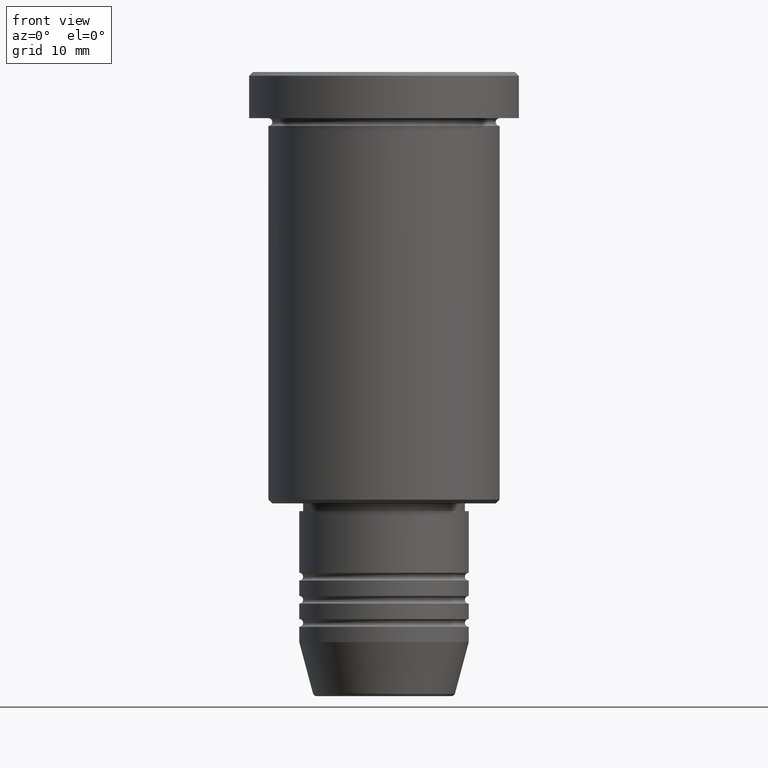
[diagram: clean part render]
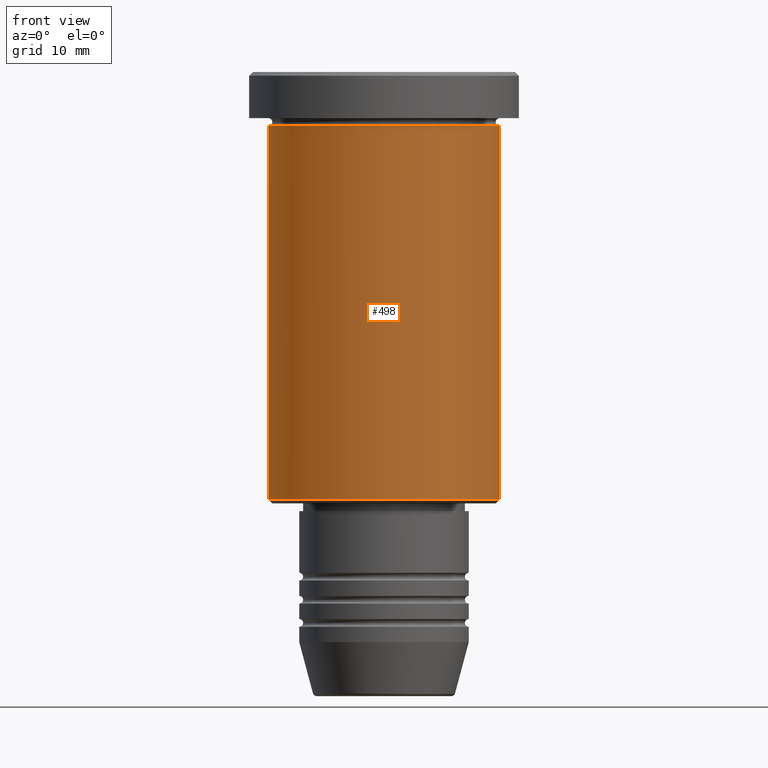
[diagram: same view with one face highlighted and labeled with its STEP entity id]
A machine part, front view. The second image highlights one B-rep face of the part: STEP entity #498.
In plain terms, the highlighted cylindrical surface (partial cylindrical patch) has radius 15 mm, axis along (-0, -0, 1).
Its self-contained STEP definition (entity closure, byte-faithful):
#89 = AXIS2_PLACEMENT_3D ( 'NONE', #474, #834, #96 ) ;
#96 = DIRECTION ( 'NONE',  ( 1.000000000000000000, 0.000000000000000000, 0.000000000000000000 ) ) ;
#153 = LINE ( 'NONE', #983, #279 ) ;
#248 = CARTESIAN_POINT ( 'NONE',  ( 0.000000000000000000, 0.000000000000000000, 0.000000000000000000 ) ) ;
#279 = VECTOR ( 'NONE', #899, 1000.000000000000000 ) ;
#294 = EDGE_CURVE ( 'NONE', #401, #576, #426, .T. ) ;
#298 = DIRECTION ( 'NONE',  ( -0.000000000000000000, -0.000000000000000000, 1.000000000000000000 ) ) ;
#306 = CARTESIAN_POINT ( 'NONE',  ( -15.00000000000000000, 1.836970198721029589E-15, 0.000000000000000000 ) ) ;
#344 = CYLINDRICAL_SURFACE ( 'NONE', #906, 15.00000000000000000 ) ;
#398 = DIRECTION ( 'NONE',  ( -1.000000000000000000, 0.000000000000000000, 0.000000000000000000 ) ) ;
#401 = VERTEX_POINT ( 'NONE', #508 ) ;
#415 = EDGE_CURVE ( 'NONE', #1148, #401, #500, .T. ) ;
#426 = CIRCLE ( 'NONE', #89, 15.00000000000000000 ) ;
#474 = CARTESIAN_POINT ( 'NONE',  ( 0.000000000000000000, 0.000000000000000000, -6.999999999999995559 ) ) ;
#481 = ORIENTED_EDGE ( 'NONE', *, *, #973, .T. ) ;
#498 = ADVANCED_FACE ( 'NONE', ( #624 ), #344, .T. ) ;
#500 = LINE ( 'NONE', #306, #1137 ) ;
#504 = EDGE_CURVE ( 'NONE', #1179, #576, #153, .T. ) ;
#508 = CARTESIAN_POINT ( 'NONE',  ( -15.00000000000000000, 1.836970198721029589E-15, -6.999999999999995559 ) ) ;
#522 = CARTESIAN_POINT ( 'NONE',  ( 15.00000000000000000, 0.000000000000000000, -55.50000000000000711 ) ) ;
#546 = AXIS2_PLACEMENT_3D ( 'NONE', #1114, #298, #398 ) ;
#576 = VERTEX_POINT ( 'NONE', #893 ) ;
#624 = FACE_OUTER_BOUND ( 'NONE', #688, .T. ) ;
#688 = EDGE_LOOP ( 'NONE', ( #940, #481, #1029, #1073 ) ) ;
#784 = DIRECTION ( 'NONE',  ( 1.000000000000000000, 0.000000000000000000, 0.000000000000000000 ) ) ;
#834 = DIRECTION ( 'NONE',  ( -0.000000000000000000, -0.000000000000000000, 1.000000000000000000 ) ) ;
#893 = CARTESIAN_POINT ( 'NONE',  ( 15.00000000000000000, 0.000000000000000000, -6.999999999999995559 ) ) ;
#899 = DIRECTION ( 'NONE',  ( -0.000000000000000000, -0.000000000000000000, 1.000000000000000000 ) ) ;
#906 = AXIS2_PLACEMENT_3D ( 'NONE', #248, #1064, #784 ) ;
#940 = ORIENTED_EDGE ( 'NONE', *, *, #415, .F. ) ;
#973 = EDGE_CURVE ( 'NONE', #1148, #1179, #1121, .T. ) ;
#983 = CARTESIAN_POINT ( 'NONE',  ( 15.00000000000000000, 0.000000000000000000, 0.000000000000000000 ) ) ;
#1029 = ORIENTED_EDGE ( 'NONE', *, *, #504, .T. ) ;
#1064 = DIRECTION ( 'NONE',  ( -0.000000000000000000, -0.000000000000000000, 1.000000000000000000 ) ) ;
#1073 = ORIENTED_EDGE ( 'NONE', *, *, #294, .F. ) ;
#1114 = CARTESIAN_POINT ( 'NONE',  ( 0.000000000000000000, 0.000000000000000000, -55.50000000000000711 ) ) ;
#1121 = CIRCLE ( 'NONE', #546, 15.00000000000000000 ) ;
#1130 = CARTESIAN_POINT ( 'NONE',  ( -15.00000000000000000, 1.836970198721029589E-15, -55.50000000000000711 ) ) ;
#1131 = DIRECTION ( 'NONE',  ( -0.000000000000000000, -0.000000000000000000, 1.000000000000000000 ) ) ;
#1137 = VECTOR ( 'NONE', #1131, 1000.000000000000000 ) ;
#1148 = VERTEX_POINT ( 'NONE', #1130 ) ;
#1179 = VERTEX_POINT ( 'NONE', #522 ) ;